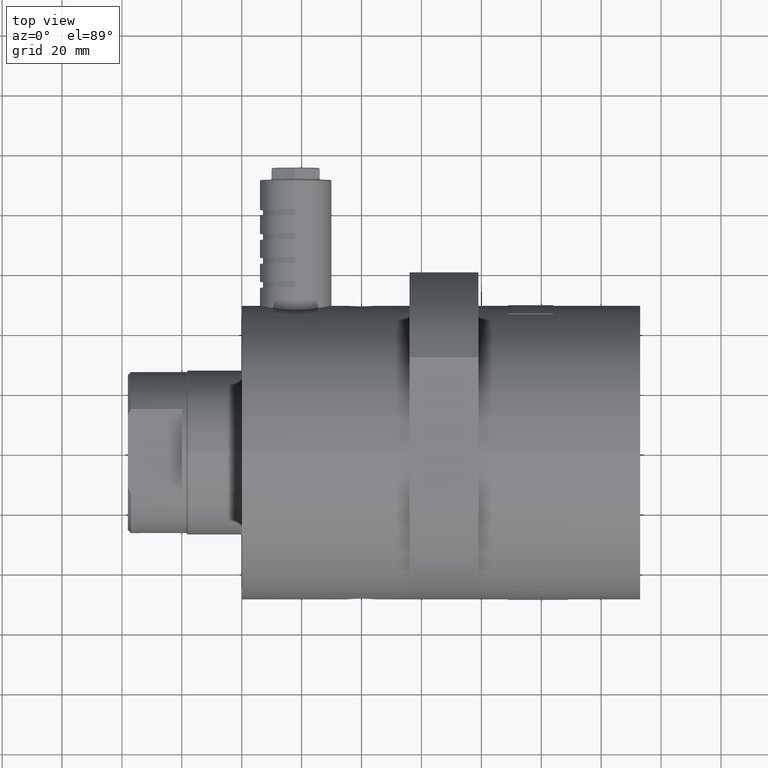
[diagram: clean part render]
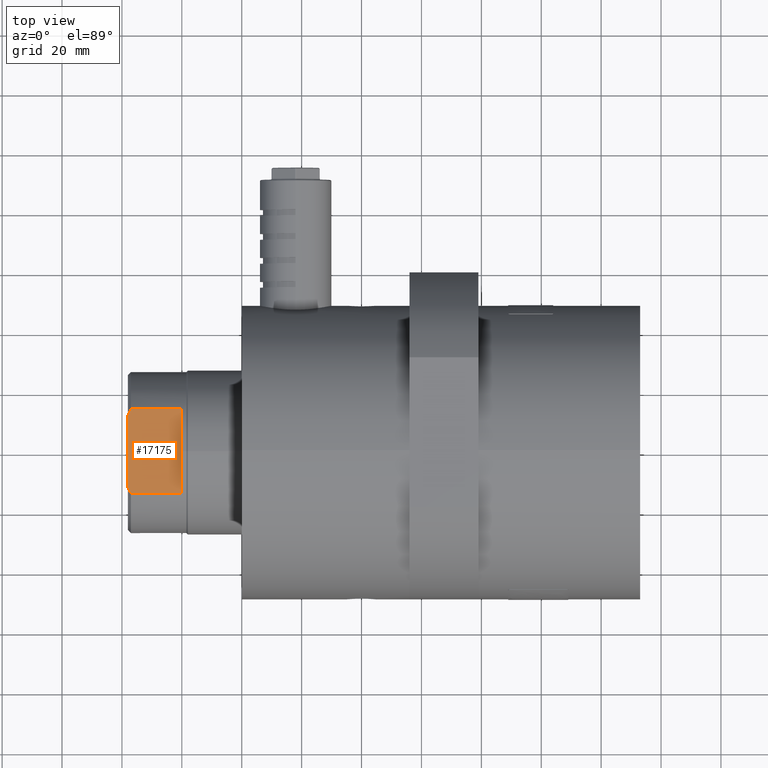
[diagram: same view with one face highlighted and labeled with its STEP entity id]
A machine part, top view. The second image highlights one B-rep face of the part: STEP entity #17175.
In plain terms, the highlighted planar face has unit normal (0, 0, -1).
Its self-contained STEP definition (entity closure, byte-faithful):
#197 = LINE ( 'NONE', #18667, #2080 ) ;
#1048 = LINE ( 'NONE', #18009, #20542 ) ;
#1073 = FACE_OUTER_BOUND ( 'NONE', #14585, .T. ) ;
#1213 = VERTEX_POINT ( 'NONE', #19320 ) ;
#1228 = DIRECTION ( 'NONE',  ( -1.000000000000000000, -0.0000000000000000000, -0.0000000000000000000 ) ) ;
#1418 = CARTESIAN_POINT ( 'NONE',  ( -37.34785878349293900, -13.47800770103238900, 23.00000000000000000 ) ) ;
#2033 = ORIENTED_EDGE ( 'NONE', *, *, #20977, .F. ) ;
#2080 = VECTOR ( 'NONE', #1228, 1000.000000000000000 ) ;
#2626 = VERTEX_POINT ( 'NONE', #18867 ) ;
#3736 = EDGE_CURVE ( 'NONE', #2626, #21729, #14829, .T. ) ;
#4353 = CARTESIAN_POINT ( 'NONE',  ( -38.00000000000000000, 12.12435565298201800, 23.00000000000000000 ) ) ;
#4870 = CARTESIAN_POINT ( 'NONE',  ( -37.00000000000000000, -14.14213562373091900, 23.00000000000000000 ) ) ;
#5196 = ORIENTED_EDGE ( 'NONE', *, *, #3736, .T. ) ;
#5656 = VECTOR ( 'NONE', #7744, 1000.000000000000000 ) ;
#5968 = CARTESIAN_POINT ( 'NONE',  ( -20.00000000000000000, 27.50000000000000000, 23.00000000000000000 ) ) ;
#7607 = DIRECTION ( 'NONE',  ( 0.0000000000000000000, -1.000000000000000000, 0.0000000000000000000 ) ) ;
#7744 = DIRECTION ( 'NONE',  ( 0.0000000000000000000, -1.000000000000000000, 0.0000000000000000000 ) ) ;
#8525 = PLANE ( 'NONE',  #16695 ) ;
#8789 = CARTESIAN_POINT ( 'NONE',  ( -38.00000000000000000, 12.12435565298201800, 23.00000000000000000 ) ) ;
#9179 = CARTESIAN_POINT ( 'NONE',  ( -38.00000000000000000, 27.50000000000000000, 23.00000000000000000 ) ) ;
#9577 = B_SPLINE_CURVE_WITH_KNOTS ( 'NONE', 3,
 ( #17201, #13699, #19138, #8789 ),
 .UNSPECIFIED., .F., .F.,
 ( 4, 4 ),
 ( 0.05209270412445236900, 0.05434863402059073700 ),
 .UNSPECIFIED. ) ;
#9927 = DIRECTION ( 'NONE',  ( 1.000000000000000000, 0.0000000000000000000, 0.0000000000000000000 ) ) ;
#10388 = LINE ( 'NONE', #9179, #16382 ) ;
#11822 = CARTESIAN_POINT ( 'NONE',  ( -37.68214798449786000, -12.80597145505758400, 23.00000000000000000 ) ) ;
#11847 = ORIENTED_EDGE ( 'NONE', *, *, #15164, .T. ) ;
#12067 = DIRECTION ( 'NONE',  ( 1.927470528863119800E-016, 0.0000000000000000000, -1.000000000000000000 ) ) ;
#12454 = EDGE_CURVE ( 'NONE', #1213, #13327, #15716, .T. ) ;
#13327 = VERTEX_POINT ( 'NONE', #19058 ) ;
#13570 = CARTESIAN_POINT ( 'NONE',  ( -37.00000000000000000, -14.14213562373091900, 23.00000000000000000 ) ) ;
#13699 = CARTESIAN_POINT ( 'NONE',  ( -37.34853124211537100, 13.47672385089203200, 23.00000000000000000 ) ) ;
#13870 = CARTESIAN_POINT ( 'NONE',  ( -38.00000000000000000, -12.12435565298201800, 23.00000000000000000 ) ) ;
#14585 = EDGE_LOOP ( 'NONE', ( #22465, #11847, #5196, #2033, #21543, #22187 ) ) ;
#14829 = B_SPLINE_CURVE_WITH_KNOTS ( 'NONE', 3,
 ( #13870, #11822, #1418, #13570 ),
 .UNSPECIFIED., .F., .F.,
 ( 4, 4 ),
 ( 0.07954041283221001400, 0.08181160193033373800 ),
 .UNSPECIFIED. ) ;
#14875 = VERTEX_POINT ( 'NONE', #4353 ) ;
#15164 = EDGE_CURVE ( 'NONE', #14875, #2626, #10388, .T. ) ;
#15264 = VERTEX_POINT ( 'NONE', #18449 ) ;
#15716 = LINE ( 'NONE', #5968, #5656 ) ;
#15722 = CARTESIAN_POINT ( 'NONE',  ( -38.00000000000000000, 27.50000000000000000, 23.00000000000000000 ) ) ;
#16382 = VECTOR ( 'NONE', #7607, 1000.000000000000000 ) ;
#16695 = AXIS2_PLACEMENT_3D ( 'NONE', #15722, #12067, #20585 ) ;
#17175 = ADVANCED_FACE ( 'NONE', ( #1073 ), #8525, .F. ) ;
#17201 = CARTESIAN_POINT ( 'NONE',  ( -37.00000000000000000, 14.14213562373091900, 23.00000000000000000 ) ) ;
#18009 = CARTESIAN_POINT ( 'NONE',  ( 17.00000000000000000, 14.14213562373089900, 23.00000000000000000 ) ) ;
#18449 = CARTESIAN_POINT ( 'NONE',  ( -37.00000000000000000, 14.14213562373091900, 23.00000000000000000 ) ) ;
#18667 = CARTESIAN_POINT ( 'NONE',  ( 17.00000000000000000, -14.14213562373089900, 23.00000000000000000 ) ) ;
#18867 = CARTESIAN_POINT ( 'NONE',  ( -38.00000000000000000, -12.12435565298201800, 23.00000000000000000 ) ) ;
#19058 = CARTESIAN_POINT ( 'NONE',  ( -20.00000000000000000, -14.14213562373089900, 23.00000000000000000 ) ) ;
#19138 = CARTESIAN_POINT ( 'NONE',  ( -37.68280026589593500, 12.80457267422044700, 23.00000000000000000 ) ) ;
#19320 = CARTESIAN_POINT ( 'NONE',  ( -20.00000000000000000, 14.14213562373089900, 23.00000000000000000 ) ) ;
#20302 = EDGE_CURVE ( 'NONE', #15264, #1213, #1048, .T. ) ;
#20542 = VECTOR ( 'NONE', #9927, 1000.000000000000000 ) ;
#20585 = DIRECTION ( 'NONE',  ( -1.000000000000000000, 0.0000000000000000000, -1.927470528863119800E-016 ) ) ;
#20977 = EDGE_CURVE ( 'NONE', #13327, #21729, #197, .T. ) ;
#21543 = ORIENTED_EDGE ( 'NONE', *, *, #12454, .F. ) ;
#21729 = VERTEX_POINT ( 'NONE', #4870 ) ;
#22187 = ORIENTED_EDGE ( 'NONE', *, *, #20302, .F. ) ;
#22289 = EDGE_CURVE ( 'NONE', #15264, #14875, #9577, .T. ) ;
#22465 = ORIENTED_EDGE ( 'NONE', *, *, #22289, .T. ) ;